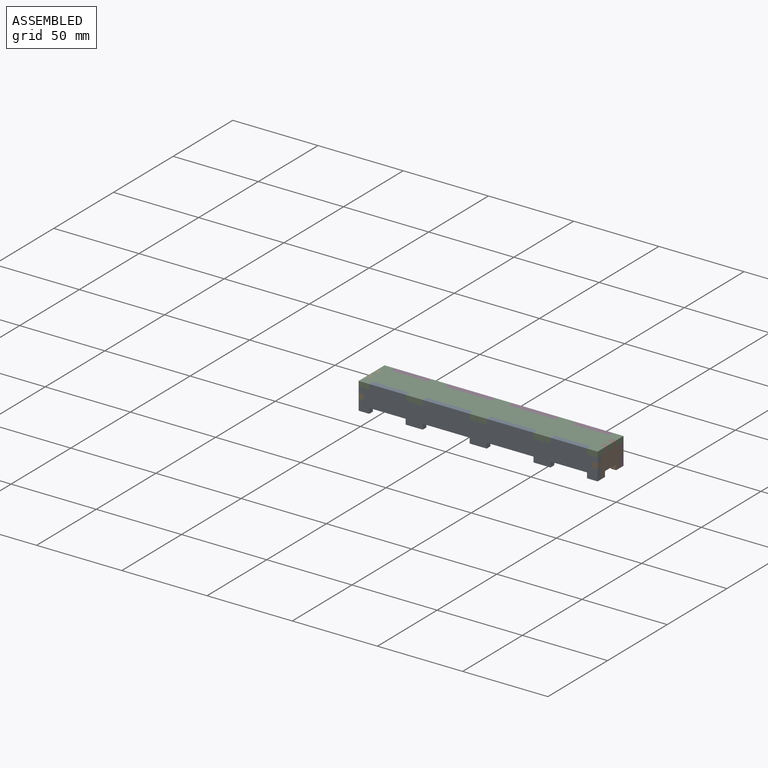
[diagram: assembled view]
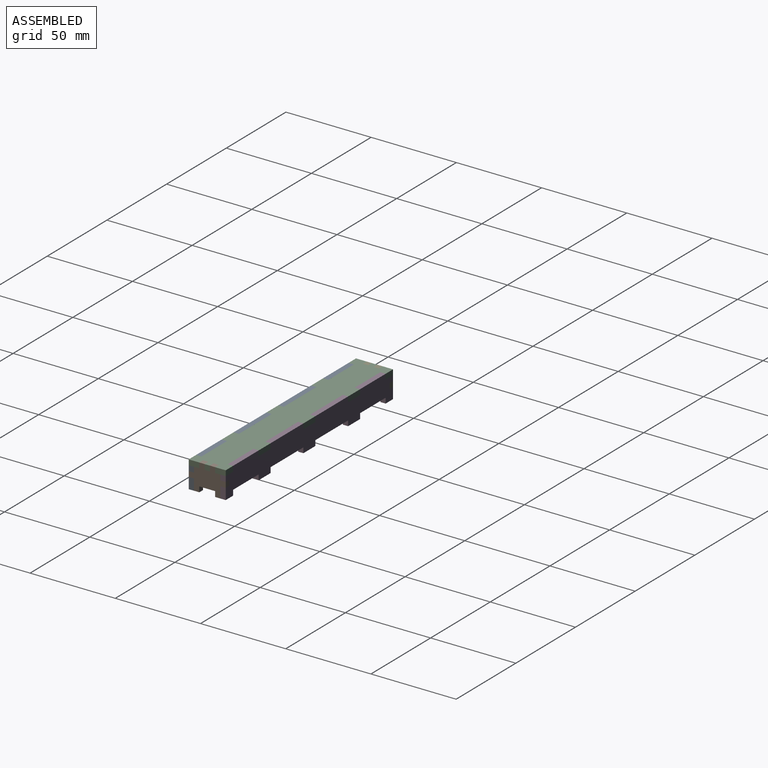
[diagram: assembled view, second angle]
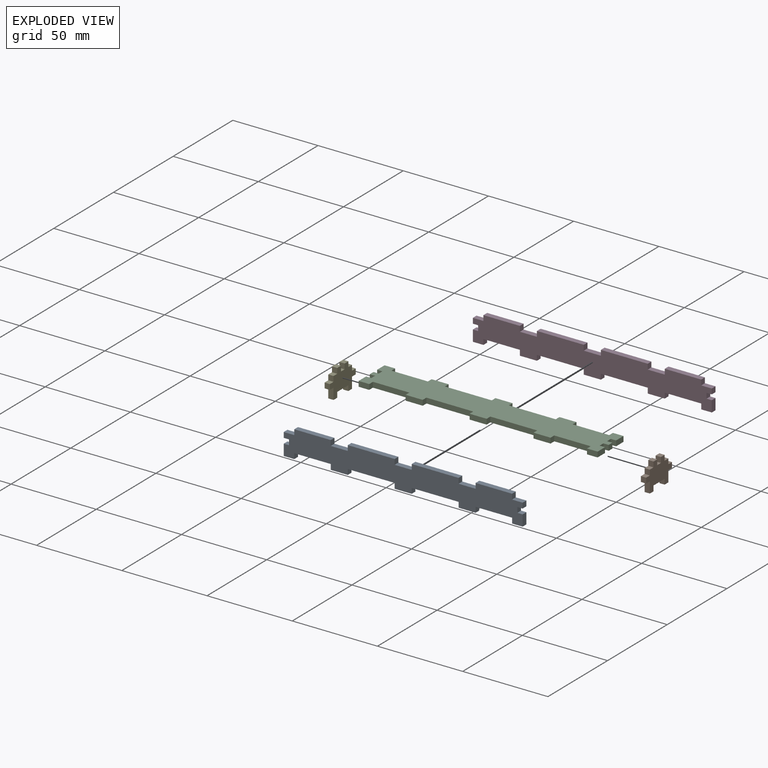
[diagram: exploded view]
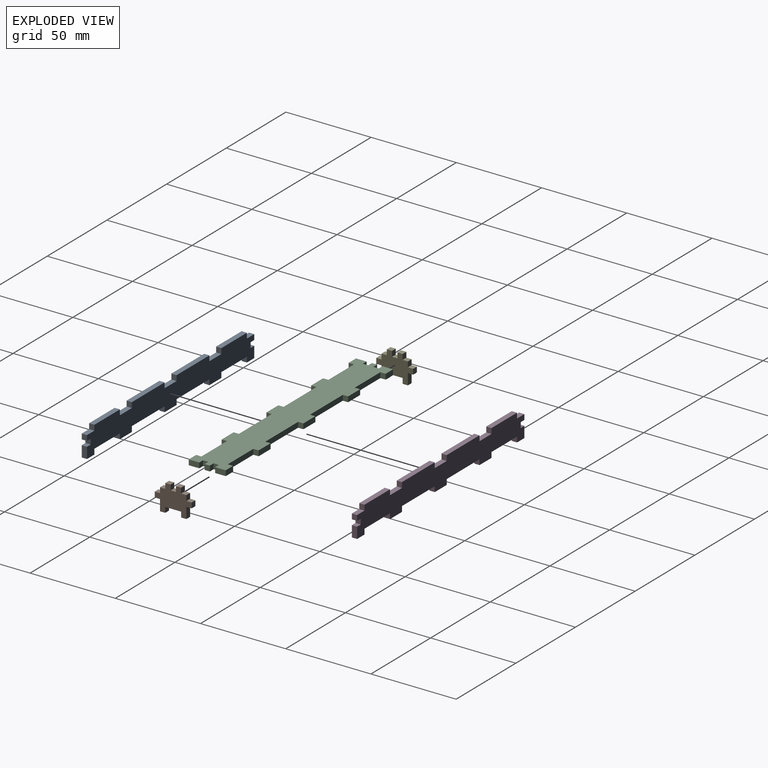
[diagram: exploded view, second angle]
ASSEMBLY  parts=5 mates=2
PART A: 46 faces, bbox 140.2x3.1x15.8 mm
  f0: plane 3.1x3.1mm, normal (1,0,0), area 9.6mm2, adj f1,f43,f44,f45
  f1: plane 3.1x3.1mm, normal (0,0,-1), area 9.6mm2, adj f0,f2,f44,f45
  f2: plane 3.1x3.1mm, normal (1,0,0), area 9.6mm2, adj f1,f3,f44,f45
  f3: plane 6.2x3.1mm, normal (0,0,1), area 19.2mm2, adj f2,f4,f44,f45
  f4: plane 3.1x3.1mm, normal (1,0,0), area 9.6mm2, adj f3,f5,f44,f45
  f5: plane 21.4x3.1mm, normal (0,0,1), area 66.3mm2, adj f4,f6,f44,f45
  f6: plane 3.1x3.1mm, normal (-1,0,0), area 9.6mm2, adj f5,f7,f44,f45
  f7: plane 10x3.1mm, normal (0,0,1), area 31mm2, adj f6,f8,f44,f45
  f8: plane 3.1x3.1mm, normal (1,0,0), area 9.6mm2, adj f7,f9,f44,f45
  f9: plane 27.5x3.1mm, normal (0,0,1), area 85.2mm2, adj f8,f10,f44,f45
  f10: plane 3.1x3.1mm, normal (-1,0,0), area 9.6mm2, adj f9,f11,f44,f45
  f11: plane 10x3.1mm, normal (0,0,1), area 31mm2, adj f10,f12,f44,f45
  f12: plane 3.1x3.1mm, normal (1,0,0), area 9.6mm2, adj f11,f13,f44,f45
  f13: plane 27.5x3.1mm, normal (0,0,1), area 85.2mm2, adj f12,f14,f44,f45
  f14: plane 3.1x3.1mm, normal (-1,0,0), area 9.6mm2, adj f13,f15,f44,f45
  f15: plane 10x3.1mm, normal (0,0,1), area 31mm2, adj f14,f16,f44,f45
  f16: plane 3.1x3.1mm, normal (1,0,0), area 9.6mm2, adj f15,f17,f44,f45
  f17: plane 21.4x3.1mm, normal (0,0,1), area 66.3mm2, adj f16,f18,f44,f45
  f18: plane 3.1x3.1mm, normal (-1,0,0), area 9.6mm2, adj f17,f19,f44,f45
  f19: plane 6.2x3.1mm, normal (0,0,1), area 19.2mm2, adj f18,f20,f44,f45
  f20: plane 3.1x3.1mm, normal (-1,0,0), area 9.6mm2, adj f19,f21,f44,f45
  f21: plane 3.1x3.1mm, normal (0,0,-1), area 9.6mm2, adj f20,f22,f44,f45
  f22: plane 3.1x3.1mm, normal (-1,0,0), area 9.6mm2, adj f21,f23,f44,f45
  f23: plane 3.1x3.1mm, normal (0,0,1), area 9.6mm2, adj f22,f24,f44,f45
  f24: plane 6.5x3.1mm, normal (-1,0,0), area 20.1mm2, adj f23,f25,f44,f45
  f25: plane 6.2x3.1mm, normal (0,0,-1), area 19.2mm2, adj f24,f26,f44,f45
  f26: plane 3.1x3.1mm, normal (1,0,0), area 9.6mm2, adj f25,f27,f44,f45
  f27: plane 21.4x3.1mm, normal (0,0,-1), area 66.3mm2, adj f26,f28,f44,f45
  f28: plane 3.1x3.1mm, normal (-1,0,0), area 9.6mm2, adj f27,f29,f44,f45
  f29: plane 10x3.1mm, normal (0,0,-1), area 31mm2, adj f28,f30,f44,f45
  f30: plane 3.1x3.1mm, normal (1,0,0), area 9.6mm2, adj f29,f31,f44,f45
  f31: plane 27.5x3.1mm, normal (0,0,-1), area 85.2mm2, adj f30,f32,f44,f45
  f32: plane 3.1x3.1mm, normal (-1,0,0), area 9.6mm2, adj f31,f33,f44,f45
  f33: plane 10x3.1mm, normal (0,0,-1), area 31mm2, adj f32,f34,f44,f45
  f34: plane 3.1x3.1mm, normal (1,0,0), area 9.6mm2, adj f33,f35,f44,f45
  f35: plane 27.5x3.1mm, normal (0,0,-1), area 85.2mm2, adj f34,f36,f44,f45
  f36: plane 3.1x3.1mm, normal (-1,0,0), area 9.6mm2, adj f35,f37,f44,f45
  f37: plane 10x3.1mm, normal (0,0,-1), area 31mm2, adj f36,f38,f44,f45
  f38: plane 3.1x3.1mm, normal (1,0,0), area 9.6mm2, adj f37,f39,f44,f45
  f39: plane 21.4x3.1mm, normal (0,0,-1), area 66.3mm2, adj f38,f40,f44,f45
  f40: plane 3.1x3.1mm, normal (-1,0,0), area 9.6mm2, adj f39,f41,f44,f45
  f41: plane 6.2x3.1mm, normal (0,0,-1), area 19.2mm2, adj f40,f42,f44,f45
  f42: plane 6.5x3.1mm, normal (1,0,0), area 20.1mm2, adj f41,f43,f44,f45
  f43: plane 3.1x3.1mm, normal (0,0,1), area 9.6mm2, adj f0,f42,f44,f45
  f44: plane 140.2x15.8mm, normal (0,-1,0), area 1761.3mm2, adj f0,f1,f2,f3,f4,f5,f6,f7
  f45: plane 140.2x15.8mm, normal (0,1,0), area 1761.3mm2, adj f0,f1,f2,f3,f4,f5,f6,f7
PART B: 26 faces, bbox 3.1x21.7x15.8 mm
  f0: plane 3.1x3.1mm, normal (0,0,1), area 9.6mm2, adj f1,f23,f24,f25
  f1: plane 3.1x3.1mm, normal (0,-1,0), area 9.6mm2, adj f0,f2,f24,f25
  f2: plane 3.1x3.1mm, normal (0,0,1), area 9.6mm2, adj f1,f3,f24,f25
  f3: plane 3.1x3.1mm, normal (0,-1,0), area 9.6mm2, adj f2,f4,f24,f25
  f4: plane 3.1x3.1mm, normal (0,0,1), area 9.6mm2, adj f3,f5,f24,f25
  f5: plane 3.1x3.1mm, normal (0,-1,0), area 9.6mm2, adj f4,f6,f24,f25
  f6: plane 3.1x3.1mm, normal (0,0,-1), area 9.6mm2, adj f5,f7,f24,f25
  f7: plane 6.5x3.1mm, normal (0,-1,0), area 20.1mm2, adj f6,f8,f24,f25
  f8: plane 3.1x3.1mm, normal (0,0,-1), area 9.6mm2, adj f7,f9,f24,f25
  f9: plane 3.1x3.1mm, normal (0,1,0), area 9.6mm2, adj f8,f10,f24,f25
  f10: plane 9.3x3.1mm, normal (0,0,-1), area 28.8mm2, adj f9,f11,f24,f25
  f11: plane 3.1x3.1mm, normal (0,-1,0), area 9.6mm2, adj f10,f12,f24,f25
  f12: plane 3.1x3.1mm, normal (0,0,-1), area 9.6mm2, adj f11,f13,f24,f25
  f13: plane 6.5x3.1mm, normal (0,1,0), area 20.1mm2, adj f12,f14,f24,f25
  f14: plane 3.1x3.1mm, normal (0,0,-1), area 9.6mm2, adj f13,f15,f24,f25
  f15: plane 3.1x3.1mm, normal (0,1,0), area 9.6mm2, adj f14,f16,f24,f25
  f16: plane 3.1x3.1mm, normal (0,0,1), area 9.6mm2, adj f15,f17,f24,f25
  f17: plane 3.1x3.1mm, normal (0,1,0), area 9.6mm2, adj f16,f18,f24,f25
  f18: plane 3.1x3.1mm, normal (0,0,1), area 9.6mm2, adj f17,f19,f24,f25
  f19: plane 3.1x3.1mm, normal (0,1,0), area 9.6mm2, adj f18,f20,f24,f25
  f20: plane 3.1x3.1mm, normal (0,0,1), area 9.6mm2, adj f19,f21,f24,f25
  f21: plane 3.1x3.1mm, normal (0,-1,0), area 9.6mm2, adj f20,f22,f24,f25
  f22: plane 3.1x3.1mm, normal (0,0,1), area 9.6mm2, adj f21,f23,f24,f25
  f23: plane 3.1x3.1mm, normal (0,1,0), area 9.6mm2, adj f0,f22,f24,f25
  f24: plane 21.7x15.8mm, normal (1,0,0), area 206.5mm2, adj f0,f1,f2,f3,f4,f5,f6,f7
  f25: plane 21.7x15.8mm, normal (-1,0,0), area 206.5mm2, adj f0,f1,f2,f3,f4,f5,f6,f7
PART C: 54 faces, bbox 140.2x21.7x3.1 mm
  f0: plane 6.2x3.1mm, normal (0,-1,0), area 19.2mm2, adj f1,f51,f52,f53
  f1: plane 3.1x3.1mm, normal (1,0,0), area 9.6mm2, adj f0,f2,f52,f53
  f2: plane 21.4x3.1mm, normal (0,-1,0), area 66.3mm2, adj f1,f3,f52,f53
  f3: plane 3.1x3.1mm, normal (-1,0,0), area 9.6mm2, adj f2,f4,f52,f53
  f4: plane 10x3.1mm, normal (0,-1,0), area 31mm2, adj f3,f5,f52,f53
  f5: plane 3.1x3.1mm, normal (1,0,0), area 9.6mm2, adj f4,f6,f52,f53
  f6: plane 27.5x3.1mm, normal (0,-1,0), area 85.2mm2, adj f5,f7,f52,f53
  f7: plane 3.1x3.1mm, normal (-1,0,0), area 9.6mm2, adj f6,f8,f52,f53
  f8: plane 10x3.1mm, normal (0,-1,0), area 31mm2, adj f7,f9,f52,f53
  f9: plane 3.1x3.1mm, normal (1,0,0), area 9.6mm2, adj f8,f10,f52,f53
  f10: plane 27.5x3.1mm, normal (0,-1,0), area 85.2mm2, adj f9,f11,f52,f53
  f11: plane 3.1x3.1mm, normal (-1,0,0), area 9.6mm2, adj f10,f12,f52,f53
  f12: plane 10x3.1mm, normal (0,-1,0), area 31mm2, adj f11,f13,f52,f53
  f13: plane 3.1x3.1mm, normal (1,0,0), area 9.6mm2, adj f12,f14,f52,f53
  f14: plane 21.4x3.1mm, normal (0,-1,0), area 66.3mm2, adj f13,f15,f52,f53
  f15: plane 3.1x3.1mm, normal (-1,0,0), area 9.6mm2, adj f14,f16,f52,f53
  f16: plane 6.2x3.1mm, normal (0,-1,0), area 19.2mm2, adj f15,f17,f52,f53
  f17: plane 6.2x3.1mm, normal (1,0,0), area 19.2mm2, adj f16,f18,f52,f53
  f18: plane 3.1x3.1mm, normal (0,1,0), area 9.6mm2, adj f17,f19,f52,f53
  f19: plane 3.1x3.1mm, normal (1,0,0), area 9.6mm2, adj f18,f20,f52,f53
  f20: plane 3.1x3.1mm, normal (0,-1,0), area 9.6mm2, adj f19,f21,f52,f53
  f21: plane 3.1x3.1mm, normal (1,0,0), area 9.6mm2, adj f20,f22,f52,f53
  f22: plane 3.1x3.1mm, normal (0,1,0), area 9.6mm2, adj f21,f23,f52,f53
  f23: plane 3.1x3.1mm, normal (1,0,0), area 9.6mm2, adj f22,f24,f52,f53
  f24: plane 3.1x3.1mm, normal (0,-1,0), area 9.6mm2, adj f23,f25,f52,f53
  f25: plane 6.2x3.1mm, normal (1,0,0), area 19.2mm2, adj f24,f26,f52,f53
  f26: plane 6.2x3.1mm, normal (0,1,0), area 19.2mm2, adj f25,f27,f52,f53
  f27: plane 3.1x3.1mm, normal (-1,0,0), area 9.6mm2, adj f26,f28,f52,f53
  f28: plane 21.4x3.1mm, normal (0,1,0), area 66.3mm2, adj f27,f29,f52,f53
  f29: plane 3.1x3.1mm, normal (1,0,0), area 9.6mm2, adj f28,f30,f52,f53
  f30: plane 10x3.1mm, normal (0,1,0), area 31mm2, adj f29,f31,f52,f53
  f31: plane 3.1x3.1mm, normal (-1,0,0), area 9.6mm2, adj f30,f32,f52,f53
  f32: plane 27.5x3.1mm, normal (0,1,0), area 85.2mm2, adj f31,f33,f52,f53
  f33: plane 3.1x3.1mm, normal (1,0,0), area 9.6mm2, adj f32,f34,f52,f53
  f34: plane 10x3.1mm, normal (0,1,0), area 31mm2, adj f33,f35,f52,f53
  f35: plane 3.1x3.1mm, normal (-1,0,0), area 9.6mm2, adj f34,f36,f52,f53
  f36: plane 27.5x3.1mm, normal (0,1,0), area 85.2mm2, adj f35,f37,f52,f53
  f37: plane 3.1x3.1mm, normal (1,0,0), area 9.6mm2, adj f36,f38,f52,f53
  f38: plane 10x3.1mm, normal (0,1,0), area 31mm2, adj f37,f39,f52,f53
  f39: plane 3.1x3.1mm, normal (-1,0,0), area 9.6mm2, adj f38,f40,f52,f53
  f40: plane 21.4x3.1mm, normal (0,1,0), area 66.3mm2, adj f39,f41,f52,f53
  f41: plane 3.1x3.1mm, normal (1,0,0), area 9.6mm2, adj f40,f42,f52,f53
  f42: plane 6.2x3.1mm, normal (0,1,0), area 19.2mm2, adj f41,f43,f52,f53
  f43: plane 6.2x3.1mm, normal (-1,0,0), area 19.2mm2, adj f42,f44,f52,f53
  f44: plane 3.1x3.1mm, normal (0,-1,0), area 9.6mm2, adj f43,f45,f52,f53
  f45: plane 3.1x3.1mm, normal (-1,0,0), area 9.6mm2, adj f44,f46,f52,f53
  f46: plane 3.1x3.1mm, normal (0,1,0), area 9.6mm2, adj f45,f47,f52,f53
  f47: plane 3.1x3.1mm, normal (-1,0,0), area 9.6mm2, adj f46,f48,f52,f53
  f48: plane 3.1x3.1mm, normal (0,-1,0), area 9.6mm2, adj f47,f49,f52,f53
  f49: plane 3.1x3.1mm, normal (-1,0,0), area 9.6mm2, adj f48,f50,f52,f53
  f50: plane 3.1x3.1mm, normal (0,1,0), area 9.6mm2, adj f49,f51,f52,f53
  f51: plane 6.2x3.1mm, normal (-1,0,0), area 19.2mm2, adj f0,f50,f52,f53
  f52: plane 140.2x21.7mm, normal (0,0,1), area 2397.5mm2, adj f0,f1,f2,f3,f4,f5,f6,f7
  f53: plane 140.2x21.7mm, normal (0,0,-1), area 2397.5mm2, adj f0,f1,f2,f3,f4,f5,f6,f7
PART D: same geometry as A
PART E: same geometry as B
PLACE A t=(11.76,63.48,-16.39)mm
PLACE B t=(78.76,113.51,-15.72)mm
PLACE C t=(-5.22,39.43,14.17)mm
PLACE D t=(11.76,82.08,-16.39)mm
PLACE E t=(-58.34,113.51,-15.72)mm
MATE fastened B.f24 <-> C.f17  axis (1,0,0) through (81.86,66.58,17.27)mm
MATE fastened A.f44 <-> B.f5  axis (0,-1,0) through (81.86,60.38,11.07)mm
